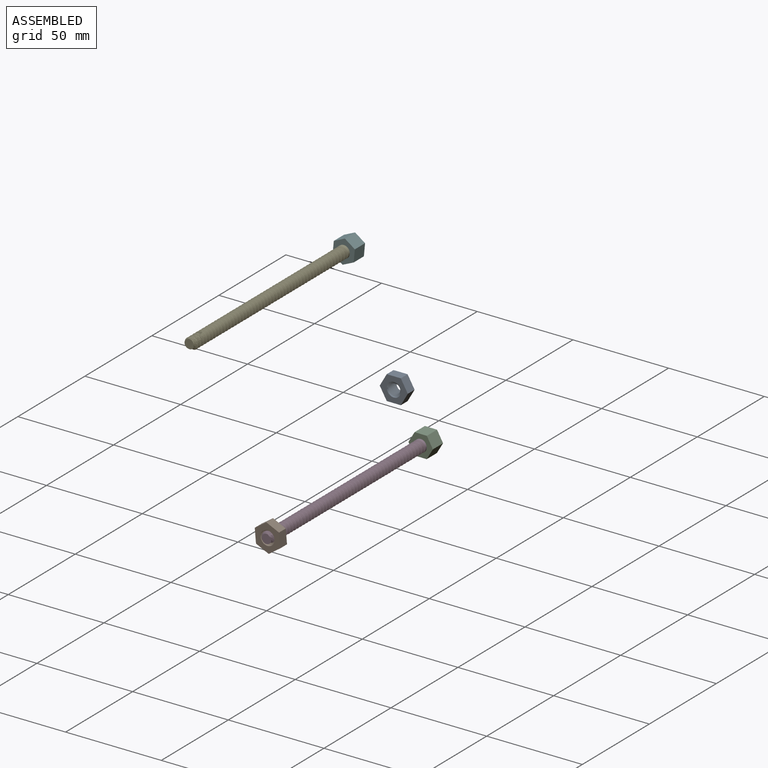
[diagram: assembled view]
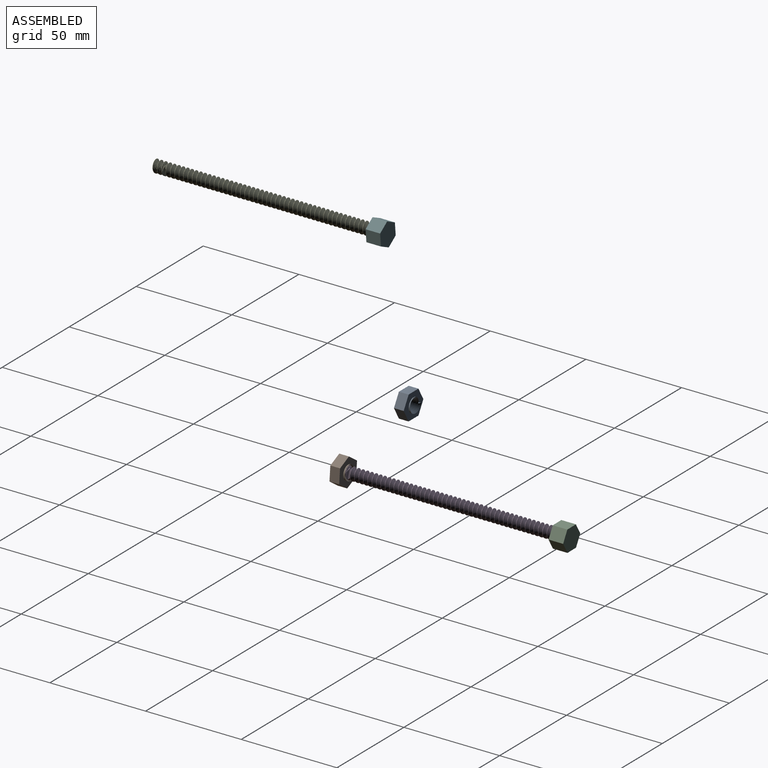
[diagram: assembled view, second angle]
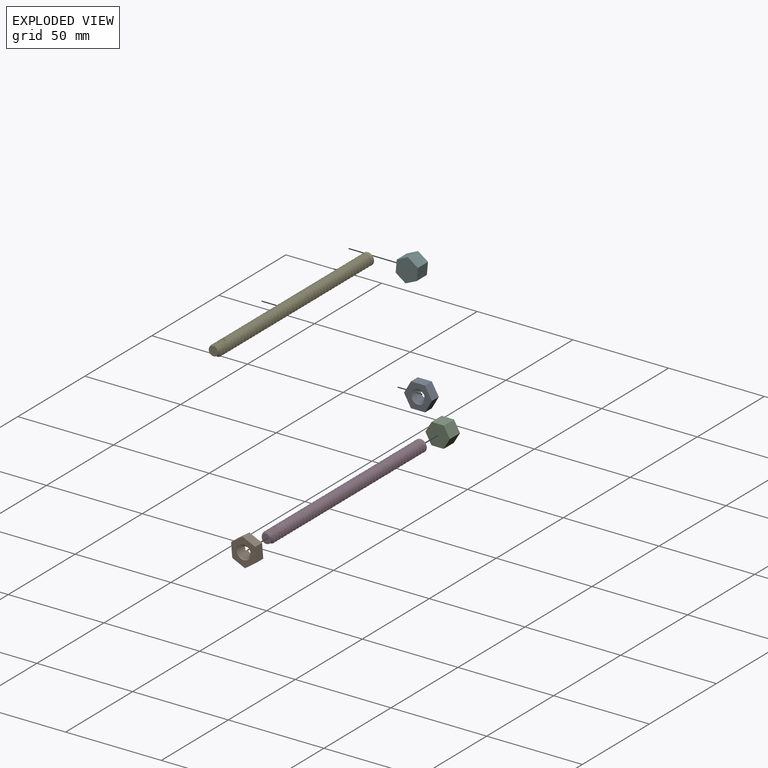
[diagram: exploded view]
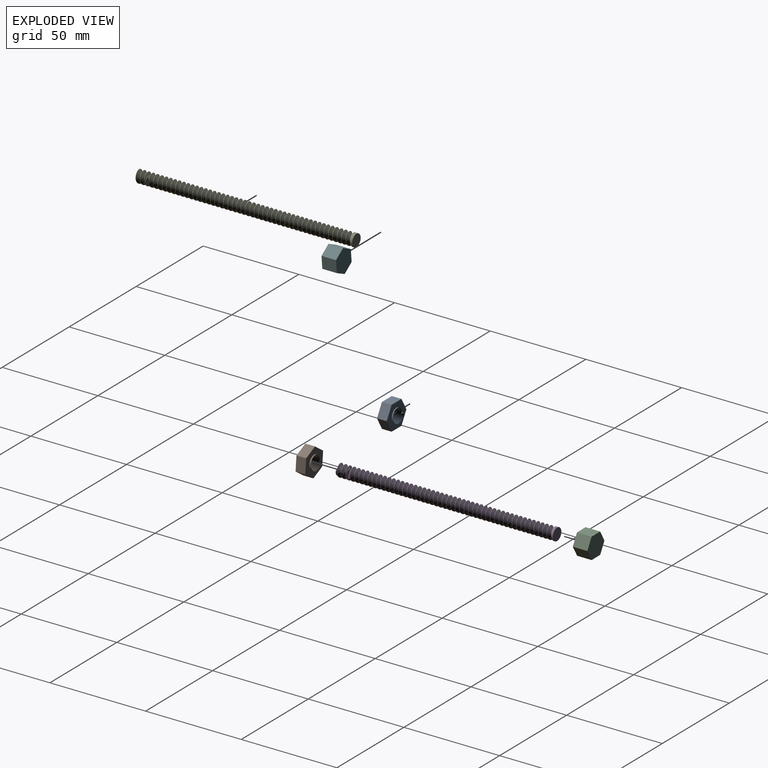
[diagram: exploded view, second angle]
ASSEMBLY  parts=6 mates=3
PART A: 16 faces, bbox 14.7x6.4x12.7 mm
  f0: plane 6.35x5.08mm, normal (0.87,0,0.5), area 37.2mm2, adj f1,f5,f6,f7
  f1: plane 7.33x5.08mm, normal (0,0,1), area 37.2mm2, adj f0,f2,f6,f7
  f2: plane 6.35x5.08mm, normal (-0.87,0,0.5), area 37.2mm2, adj f1,f3,f6,f7
  f3: plane 6.35x5.08mm, normal (-0.87,0,-0.5), area 37.2mm2, adj f2,f4,f6,f7
  f4: plane 7.33x5.08mm, normal (0,0,-1), area 37.2mm2, adj f3,f5,f6,f7
  f5: plane 6.35x5.08mm, normal (0.87,0,-0.5), area 37.2mm2, adj f0,f4,f6,f7
  f6: plane 14.66x12.7mm, normal (0,-1,0), area 97.1mm2, adj f0,f1,f2,f3,f4,f5,f8
  f7: plane 14.66x12.7mm, normal (0,1,0), area 97.1mm2, adj f0,f1,f2,f3,f4,f5,f9
  f8: cylinder r=3.68mm len=7.37mm, axis (0,1,0), area 14.7mm2, adj f6,f11,f15
  f9: cylinder r=3.68mm len=7.37mm, axis (0,-1,0), area 16.2mm2, adj f7,f10,f12
  f10: plane 1.3x1.16mm, normal (0,0,1), area 0.8mm2, adj f9,f12,f13,f14
  f11: plane 1.3x1.16mm, normal (0,0,-1), area 0.8mm2, adj f8,f13,f14,f15
  f12: bspline ~8.51x7.37mm, area 1.5mm2, adj f9,f10,f13
  f13: bspline ~8.38x7.25mm, area 98.4mm2, adj f10,f11,f12,f14
  f14: bspline ~8.38x7.25mm, area 98.4mm2, adj f10,f11,f13,f15
  f15: bspline ~8.51x7.37mm, area 1.5mm2, adj f8,f11,f14
PART B: same geometry as A
PART C: 8 faces, bbox 11.6x7.6x12.7 mm
  f0: plane 7.61x6.35mm, normal (1,0,-0.1), area 48.6mm2, adj f1,f5,f6,f7
  f1: plane 7.61x5.19mm, normal (0.58,0,0.81), area 48.6mm2, adj f0,f2,f6,f7
  f2: plane 7.61x5.81mm, normal (-0.41,0,0.91), area 48.6mm2, adj f1,f3,f6,f7
  f3: plane 7.61x6.35mm, normal (-1,0,0.1), area 48.6mm2, adj f2,f4,f6,f7
  f4: plane 7.61x5.19mm, normal (-0.58,0,-0.81), area 48.6mm2, adj f3,f5,f6,f7
  f5: plane 7.61x5.81mm, normal (0.41,0,-0.91), area 48.6mm2, adj f0,f4,f6,f7
  f6: plane 12.7x11.61mm, normal (0,-1,0), area 105.7mm2, adj f0,f1,f2,f3,f4,f5
  f7: plane 12.7x11.61mm, normal (0,1,0), area 105.7mm2, adj f0,f1,f2,f3,f4,f5
PART D: 6 faces, bbox 6.4x115.6x7.3 mm
  f0: cylinder r=3.17mm len=114.3mm, axis (0,1,0), area -705.5mm2, adj f1,f2,f3,f4,f5
  f1: plane 6.35x6.35mm, normal (0,-1,0), area 31.7mm2, adj f0
  f2: plane 4.85x4.79mm, normal (0,1,0), area 18.1mm2, adj f0,f3,f4
  f3: bspline ~114.59x7.33mm, area 1493.2mm2, adj f0,f2,f4,f5
  f4: bspline ~115.36x7.33mm, area 1516.4mm2, adj f0,f2,f3,f5
  f5: plane 2.11x1.83mm, normal (0,0,1), area 1.9mm2, adj f0,f3,f4
PART E: same geometry as D
PART F: same geometry as C
PLACE A at identity
PLACE B rot(axis=(0,-1,0),35deg) t=(-28.22,-53.94,-57.03)mm
PLACE C rot(axis=(0,-1,0),35deg) t=(-28.22,62.89,-57.03)mm
PLACE D rot(axis=(0.95,0,0.3),180deg) t=(-28.22,-59.02,-57.03)mm
PLACE E rot(axis=(1,0,0),180deg) t=(-10.07,-142.33,71.27)mm
PLACE F t=(-10.07,-20.42,71.27)mm
MATE cylindrical D.f0 <-> B.f8  axis (0,-1,0) through (-28.22,-59.02,-57.03)mm
MATE fastened C.f6 <-> D.f0  axis (0,1,0) through (-28.22,55.28,-57.03)mm
MATE fastened E.f0 <-> F.f6  axis (0,1,0) through (-10.07,-28.03,71.27)mm
